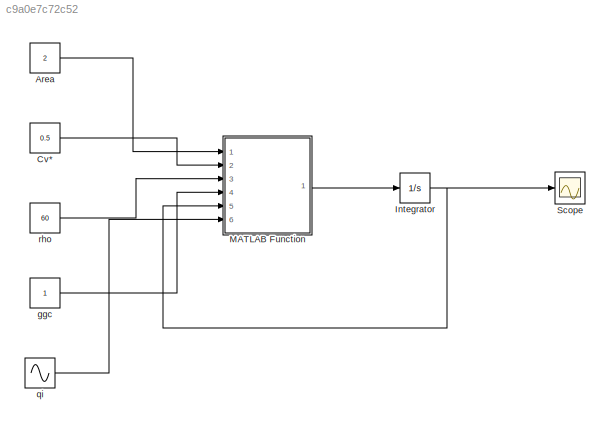
MODEL slx_c9a0e7c72c52
KIND model
CONFIG AbsTol = auto
CONFIG EnableMultiTasking = off
CONFIG FixedStep = auto
CONFIG MaxStep = auto
CONFIG MinStep = auto
CONFIG RelTol = 1e-3
CONFIG SampleTimeConstraint = Unconstrained
CONFIG Solver = VariableStepAuto
CONFIG SolverName = VariableStepAuto
CONFIG StartTime = 0.0
CONFIG StopTime = 28
BLOCK [Constant] Area
  Value = 2
BLOCK [Constant] Cv*
  Value = 0.5
BLOCK [Integrator] Integrator
  InitialCondition = 10
  Ports = [1, 1]
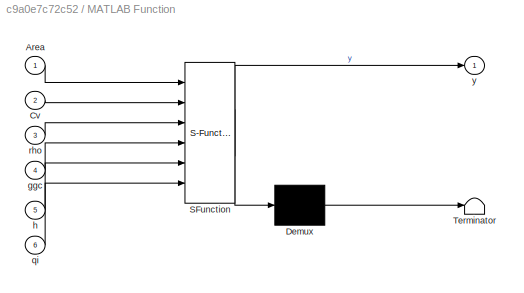
BLOCK [SubSystem] MATLAB Function
  ErrorFcn = Stateflow.Translate.translate
  PermitHierarchicalResolution = ExplicitOnly
  Ports = [6, 1]
  RequestExecContextInheritance = off
  SFBlockType = MATLAB Function
  TreatAsAtomicUnit = on
  Variant = off
BLOCK [Demux] MATLAB Function/ Demux 
  Outputs = 1
  Ports = [1, 1]
BLOCK [S-Function] MATLAB Function/ SFunction 
  EnableBusSupport = on
  FunctionName = sf_sfun
  PortCounts = [6 2]
  Ports = [6, 2]
  SFcnIsStateOwnerBlock = off
  SFunctionDeploymentMode = off
  Tag = Stateflow S-Function A3_2 2
BLOCK [Terminator] MATLAB Function/ Terminator 
BLOCK [Inport] MATLAB Function/Area
  IconDisplay = Port number
BLOCK [Inport] MATLAB Function/Cv
  IconDisplay = Port number
  Port = 2
BLOCK [Inport] MATLAB Function/ggc
  IconDisplay = Port number
  Port = 4
BLOCK [Inport] MATLAB Function/h
  IconDisplay = Port number
  Port = 5
BLOCK [Inport] MATLAB Function/qi
  IconDisplay = Port number
  Port = 6
BLOCK [Inport] MATLAB Function/rho
  IconDisplay = Port number
  Port = 3
BLOCK [Outport] MATLAB Function/y
  IconDisplay = Port number
BLOCK [Scope] Scope
  NumInputPorts = 1
  Ports = [1]
  ScopeSpecificationString = Simulink.scopes.TimeScopeBlockCfg('CurrentConfiguration', extmgr.ConfigurationSet(extmgr.Configuration('Core','General UI',true),extmgr.Configuration('Core','Source UI',true),extmgr.Configuration('Sources','WiredSimulink',true),extmgr.Configuration('Visuals','Time Domain',true,'SerializedDisplays',{struct('MinYLimReal','-1.2265','MaxYLimReal','11.24739','YLabelReal','','MinYLimMag','0.00000','MaxY...<+1358ch>
BLOCK [Constant] ggc
BLOCK [Sin] qi
  Ports = [0, 1]
  SampleTime = 0
BLOCK [Constant] rho
  Value = 60
LINE Area:1 -> MATLAB Function:1
LINE Cv*:1 -> MATLAB Function:2
NET Integrator:1 -> MATLAB Function:5, Scope:1
LINE MATLAB Function:1 -> Integrator:1
LINE ggc:1 -> MATLAB Function:4
LINE qi:1 -> MATLAB Function:6
LINE rho:1 -> MATLAB Function:3
note: NET lines group one-source signal fan-out (src -> all destinations, sorted); 1:1 wires keep LINE
CHART MATLAB Function states=1 transitions=1
  STATE_LABEL 'eML_blk_kernel()'
  STATE_LABEL 'SCRIPT:\nfunction y = fcn(Area,Cv,rho,ggc,h,qi) \n\nCvv = Cv*sqrt(ggc);\ny = qi/Area-Cvv*sqrt(h(1))/Area;\n\n\n\n'
